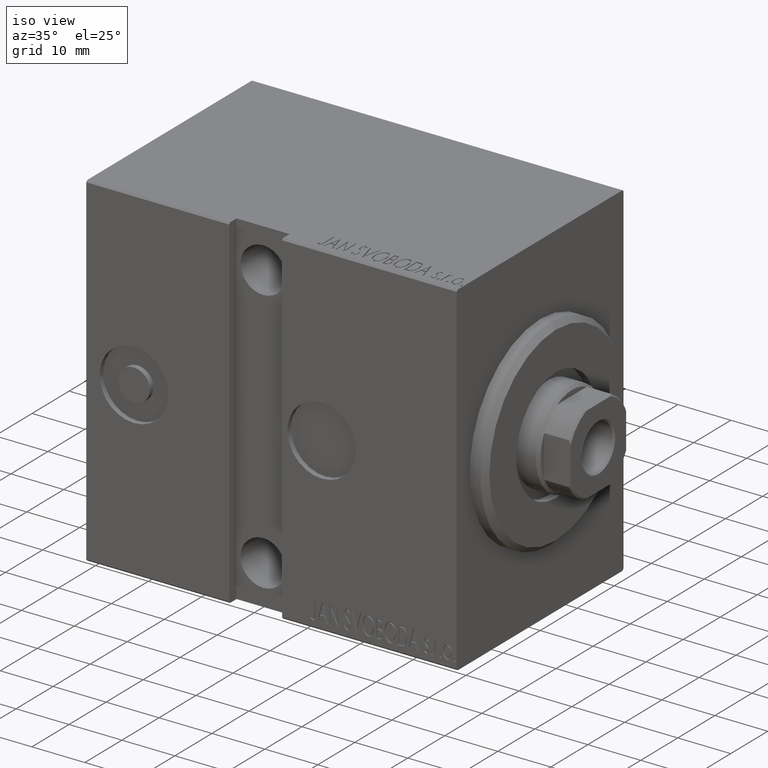
[diagram: clean part render]
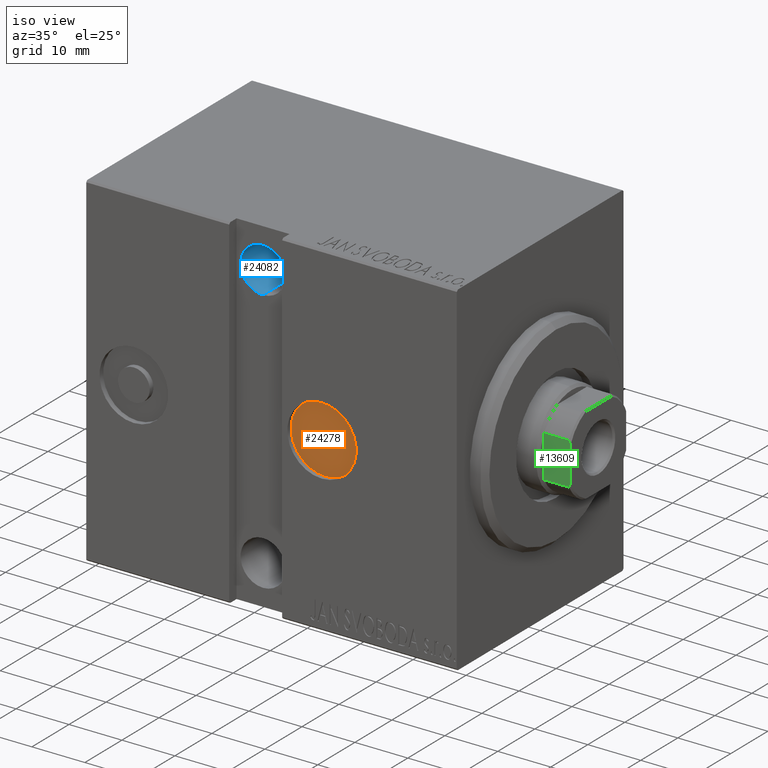
[diagram: same view with three faces highlighted in distinct colors, each labeled with its STEP entity id]
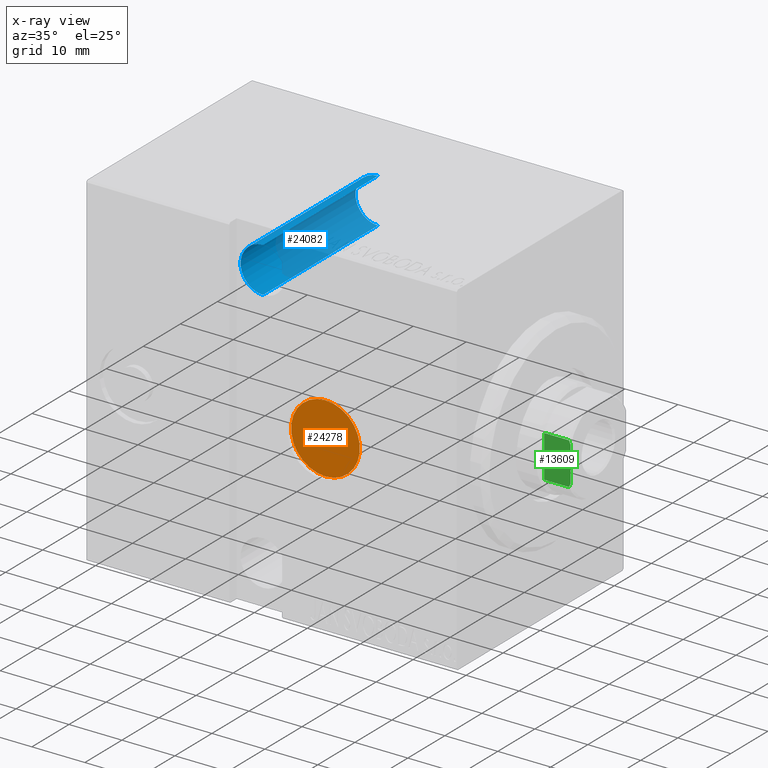
[diagram: x-ray of the same camera — body ghosted, the three highlighted faces saturated]
A machine part, iso view with three faces highlighted in distinct colors.
The next image is the same camera in x-ray (body ghosted, the three faces saturated) — at least one of them is partly hidden behind the body in this view.
Their STEP definitions:

[orange] entity #24278 — the highlighted planar face has unit normal (-0, -1, 0).
#715 = DIRECTION ( 'NONE',  ( 1.848892746611746419E-32, 1.000000000000000000, 8.851255261214056290E-17 ) ) ;
#868 = DIRECTION ( 'NONE',  ( 0.000000000000000000, -8.851255261214056290E-17, 1.000000000000000000 ) ) ;
#1904 = VERTEX_POINT ( 'NONE', #35273 ) ;
#6166 = ORIENTED_EDGE ( 'NONE', *, *, #41128, .T. ) ;
#6314 = CIRCLE ( 'NONE', #10434, 6.499999999999997335 ) ;
#6442 = DIRECTION ( 'NONE',  ( 0.000000000000000000, 0.000000000000000000, 1.000000000000000000 ) ) ;
#7212 = AXIS2_PLACEMENT_3D ( 'NONE', #7587, #715, #20720 ) ;
#7587 = CARTESIAN_POINT ( 'NONE',  ( 25.50000000000000000, 21.50000000000000000, 2.275763105547195299E-15 ) ) ;
#10093 = DIRECTION ( 'NONE',  ( 1.848892746611746419E-32, 1.000000000000000000, 8.851255261214056290E-17 ) ) ;
#10434 = AXIS2_PLACEMENT_3D ( 'NONE', #39616, #10093, #6442 ) ;
#20720 = DIRECTION ( 'NONE',  ( 0.000000000000000000, 0.000000000000000000, 1.000000000000000000 ) ) ;
#22056 = AXIS2_PLACEMENT_3D ( 'NONE', #23463, #33167, #868 ) ;
#23463 = CARTESIAN_POINT ( 'NONE',  ( 4.160008679876429443E-31, 21.50000000000000000, 1.865370726429394705E-15 ) ) ;
#24278 = ADVANCED_FACE ( 'NONE', ( #27352 ), #26710, .T. ) ;
#24501 = VERTEX_POINT ( 'NONE', #39559 ) ;
#26482 = CIRCLE ( 'NONE', #7212, 6.499999999999997335 ) ;
#26710 = PLANE ( 'NONE',  #22056 ) ;
#27352 = FACE_OUTER_BOUND ( 'NONE', #42031, .T. ) ;
#28399 = EDGE_CURVE ( 'NONE', #24501, #1904, #6314, .T. ) ;
#29534 = ORIENTED_EDGE ( 'NONE', *, *, #28399, .T. ) ;
#33167 = DIRECTION ( 'NONE',  ( 1.848892746611746419E-32, 1.000000000000000000, 8.851255261214056290E-17 ) ) ;
#35273 = CARTESIAN_POINT ( 'NONE',  ( 25.50000000000000000, 21.50000000000000000, 6.500000000000000000 ) ) ;
#39559 = CARTESIAN_POINT ( 'NONE',  ( 25.50000000000000000, 21.50000000000000000, -6.499999999999994671 ) ) ;
#39616 = CARTESIAN_POINT ( 'NONE',  ( 25.50000000000000000, 21.50000000000000000, 2.275763105547195299E-15 ) ) ;
#41128 = EDGE_CURVE ( 'NONE', #1904, #24501, #26482, .T. ) ;
#42031 = EDGE_LOOP ( 'NONE', ( #6166, #29534 ) ) ;

[blue] entity #24082 — the highlighted cylindrical surface (edge-blend (fillet) strip) has radius 4.25 mm, axis along (0, -1, 0).
#943 = DIRECTION ( 'NONE',  ( -0.000000000000000000, 1.000000000000000000, -0.000000000000000000 ) ) ;
#1838 = EDGE_CURVE ( 'NONE', #24921, #2679, #27753, .T. ) ;
#2619 = VERTEX_POINT ( 'NONE', #13117 ) ;
#2679 = VERTEX_POINT ( 'NONE', #19391 ) ;
#6581 = LINE ( 'NONE', #12407, #14423 ) ;
#6807 = EDGE_CURVE ( 'NONE', #2679, #17438, #32707, .T. ) ;
#7251 = AXIS2_PLACEMENT_3D ( 'NONE', #28150, #31593, #38074 ) ;
#7268 = CIRCLE ( 'NONE', #31337, 4.249999999999996447 ) ;
#7599 = DIRECTION ( 'NONE',  ( 0.000000000000000000, 0.000000000000000000, 1.000000000000000000 ) ) ;
#8152 = CARTESIAN_POINT ( 'NONE',  ( 38.00000000000001421, -22.50000000000001421, 20.75000000000000355 ) ) ;
#10824 = CARTESIAN_POINT ( 'NONE',  ( 38.00000000000001421, -22.50000000000001421, 25.00000000000000000 ) ) ;
#12407 = CARTESIAN_POINT ( 'NONE',  ( 38.00000000000001421, -22.50000000000001421, 29.25000000000000000 ) ) ;
#13117 = CARTESIAN_POINT ( 'NONE',  ( 38.00000000000001421, -10.49999999999999112, 29.25000000000000000 ) ) ;
#14001 = VECTOR ( 'NONE', #34003, 1000.000000000000000 ) ;
#14324 = ORIENTED_EDGE ( 'NONE', *, *, #1838, .F. ) ;
#14423 = VECTOR ( 'NONE', #35888, 1000.000000000000000 ) ;
#14601 = ORIENTED_EDGE ( 'NONE', *, *, #22844, .T. ) ;
#17438 = VERTEX_POINT ( 'NONE', #35030 ) ;
#19391 = CARTESIAN_POINT ( 'NONE',  ( 38.00000000000001421, 20.49999999999999645, 20.75000000000000355 ) ) ;
#21477 = DIRECTION ( 'NONE',  ( -0.000000000000000000, 1.000000000000000000, -1.963837897332234442E-16 ) ) ;
#22844 = EDGE_CURVE ( 'NONE', #2619, #17438, #6581, .T. ) ;
#23113 = CYLINDRICAL_SURFACE ( 'NONE', #40633, 4.249999999999996447 ) ;
#24082 = ADVANCED_FACE ( 'NONE', ( #39921 ), #23113, .F. ) ;
#24921 = VERTEX_POINT ( 'NONE', #37118 ) ;
#25156 = EDGE_LOOP ( 'NONE', ( #14324, #40369, #14601, #30550 ) ) ;
#25360 = CARTESIAN_POINT ( 'NONE',  ( 38.00000000000001421, -10.49999999999999112, 25.00000000000000000 ) ) ;
#27753 = LINE ( 'NONE', #8152, #14001 ) ;
#28150 = CARTESIAN_POINT ( 'NONE',  ( 38.00000000000001421, 20.49999999999999645, 25.00000000000000000 ) ) ;
#30550 = ORIENTED_EDGE ( 'NONE', *, *, #6807, .F. ) ;
#31337 = AXIS2_PLACEMENT_3D ( 'NONE', #25360, #21477, #34836 ) ;
#31593 = DIRECTION ( 'NONE',  ( 0.000000000000000000, -1.000000000000000000, 0.000000000000000000 ) ) ;
#32707 = CIRCLE ( 'NONE', #7251, 4.249999999999996447 ) ;
#34003 = DIRECTION ( 'NONE',  ( -0.000000000000000000, 1.000000000000000000, -0.000000000000000000 ) ) ;
#34836 = DIRECTION ( 'NONE',  ( 0.000000000000000000, 0.000000000000000000, -1.000000000000000000 ) ) ;
#35030 = CARTESIAN_POINT ( 'NONE',  ( 38.00000000000001421, 20.49999999999999645, 29.25000000000000000 ) ) ;
#35888 = DIRECTION ( 'NONE',  ( -0.000000000000000000, 1.000000000000000000, -0.000000000000000000 ) ) ;
#37118 = CARTESIAN_POINT ( 'NONE',  ( 38.00000000000001421, -10.49999999999999112, 20.75000000000000355 ) ) ;
#38074 = DIRECTION ( 'NONE',  ( 0.000000000000000000, 0.000000000000000000, -1.000000000000000000 ) ) ;
#39921 = FACE_OUTER_BOUND ( 'NONE', #25156, .T. ) ;
#40369 = ORIENTED_EDGE ( 'NONE', *, *, #42561, .F. ) ;
#40633 = AXIS2_PLACEMENT_3D ( 'NONE', #10824, #943, #7599 ) ;
#42561 = EDGE_CURVE ( 'NONE', #2619, #24921, #7268, .T. ) ;

[green] entity #13609 — the highlighted planar face has unit normal (0, 1, 0).
#846 = EDGE_CURVE ( 'NONE', #39730, #38622, #37177, .T. ) ;
#874 = CARTESIAN_POINT ( 'NONE',  ( 3.315116890850187570, -7.499999999999996447, 75.00000000000001421 ) ) ;
#2817 = CARTESIAN_POINT ( 'NONE',  ( -3.546278369582397616, -7.499999999999998224, 74.90654544845624230 ) ) ;
#3238 = CARTESIAN_POINT ( 'NONE',  ( -3.774404943294797921, -7.499999999999998224, 74.80616237962605908 ) ) ;
#4006 = EDGE_CURVE ( 'NONE', #32246, #29357, #31281, .T. ) ;
#4030 = CARTESIAN_POINT ( 'NONE',  ( -7.499999999999999112, -7.499999999999998224, 75.00000000000001421 ) ) ;
#4607 = CARTESIAN_POINT ( 'NONE',  ( -7.499999999999999112, -7.499999999999998224, 75.00000000000001421 ) ) ;
#7077 = LINE ( 'NONE', #17192, #24463 ) ;
#7326 = CARTESIAN_POINT ( 'NONE',  ( 4.000000000000000000, -7.500000000000000888, 74.70000000000001705 ) ) ;
#7935 = EDGE_CURVE ( 'NONE', #29357, #26183, #7077, .T. ) ;
#7937 = CARTESIAN_POINT ( 'NONE',  ( 4.000000000000000000, -7.500000000000000888, 70.00000000000001421 ) ) ;
#8611 = CARTESIAN_POINT ( 'NONE',  ( -4.000000000000000000, -7.500000000000000888, 70.00000000000001421 ) ) ;
#9886 = CARTESIAN_POINT ( 'NONE',  ( 4.000000000000000000, -7.500000000000000888, 74.70000000000001705 ) ) ;
#10729 = LINE ( 'NONE', #23666, #41444 ) ;
#11159 = DIRECTION ( 'NONE',  ( -0.000000000000000000, -0.000000000000000000, 1.000000000000000000 ) ) ;
#11892 = DIRECTION ( 'NONE',  ( 1.000000000000000000, 0.000000000000000000, 0.000000000000000000 ) ) ;
#12601 = EDGE_CURVE ( 'NONE', #39730, #26921, #39584, .T. ) ;
#13171 = EDGE_CURVE ( 'NONE', #26183, #26921, #25136, .T. ) ;
#13412 = CARTESIAN_POINT ( 'NONE',  ( -3.315116890850222653, -7.499999999999998224, 75.00000000000001421 ) ) ;
#13609 = ADVANCED_FACE ( 'NONE', ( #21824 ), #41439, .F. ) ;
#13745 = ORIENTED_EDGE ( 'NONE', *, *, #4006, .T. ) ;
#14716 = DIRECTION ( 'NONE',  ( 0.000000000000000000, -0.000000000000000000, 1.000000000000000000 ) ) ;
#16956 = DIRECTION ( 'NONE',  ( 1.000000000000000000, 0.000000000000000000, 0.000000000000000000 ) ) ;
#17192 = CARTESIAN_POINT ( 'NONE',  ( 4.000000000000000000, -7.500000000000000888, -0.001000000000001000089 ) ) ;
#18628 = ORIENTED_EDGE ( 'NONE', *, *, #846, .T. ) ;
#18705 = ORIENTED_EDGE ( 'NONE', *, *, #7935, .T. ) ;
#20453 = CARTESIAN_POINT ( 'NONE',  ( 3.546278369582418488, -7.499999999999998224, 74.90654544845632756 ) ) ;
#21581 = ORIENTED_EDGE ( 'NONE', *, *, #33813, .F. ) ;
#21824 = FACE_OUTER_BOUND ( 'NONE', #30335, .T. ) ;
#23666 = CARTESIAN_POINT ( 'NONE',  ( -4.000000000000000000, -7.500000000000000888, -0.001000000000001000089 ) ) ;
#24370 = VECTOR ( 'NONE', #11892, 1000.000000000000000 ) ;
#24463 = VECTOR ( 'NONE', #33782, 1000.000000000000000 ) ;
#25063 = DIRECTION ( 'NONE',  ( 0.000000000000000000, 1.000000000000000000, 0.000000000000000000 ) ) ;
#25136 = B_SPLINE_CURVE_WITH_KNOTS ( 'NONE', 3,
 ( #7326, #40489, #20453, #874 ),
 .UNSPECIFIED., .F., .F.,
 ( 4, 4 ),
 ( 0.000000000000000000, 0.0007477064084242632681 ),
 .UNSPECIFIED. ) ;
#25862 = ORIENTED_EDGE ( 'NONE', *, *, #12601, .F. ) ;
#26183 = VERTEX_POINT ( 'NONE', #9886 ) ;
#26921 = VERTEX_POINT ( 'NONE', #32560 ) ;
#29357 = VERTEX_POINT ( 'NONE', #7937 ) ;
#29500 = CARTESIAN_POINT ( 'NONE',  ( -4.000000000000000000, -7.500000000000000888, 74.70000000000004547 ) ) ;
#30335 = EDGE_LOOP ( 'NONE', ( #18705, #35549, #25862, #18628, #21581, #13745 ) ) ;
#30643 = CARTESIAN_POINT ( 'NONE',  ( -7.499999999999999112, -7.499999999999998224, 70.00000000000000000 ) ) ;
#31281 = LINE ( 'NONE', #30643, #24370 ) ;
#31735 = CARTESIAN_POINT ( 'NONE',  ( -4.000000000000000000, -7.500000000000000888, 74.70000000000004547 ) ) ;
#32246 = VERTEX_POINT ( 'NONE', #8611 ) ;
#32325 = CARTESIAN_POINT ( 'NONE',  ( -3.315116890850222653, -7.499999999999998224, 75.00000000000001421 ) ) ;
#32560 = CARTESIAN_POINT ( 'NONE',  ( 3.315116890850187570, -7.499999999999996447, 75.00000000000001421 ) ) ;
#33511 = AXIS2_PLACEMENT_3D ( 'NONE', #4607, #25063, #14716 ) ;
#33782 = DIRECTION ( 'NONE',  ( -0.000000000000000000, -0.000000000000000000, 1.000000000000000000 ) ) ;
#33813 = EDGE_CURVE ( 'NONE', #32246, #38622, #10729, .T. ) ;
#35549 = ORIENTED_EDGE ( 'NONE', *, *, #13171, .T. ) ;
#36648 = VECTOR ( 'NONE', #16956, 1000.000000000000000 ) ;
#37177 = B_SPLINE_CURVE_WITH_KNOTS ( 'NONE', 3,
 ( #32325, #2817, #3238, #29500 ),
 .UNSPECIFIED., .F., .F.,
 ( 4, 4 ),
 ( 1.301042606982605321E-18, 0.0007477064084242215263 ),
 .UNSPECIFIED. ) ;
#38622 = VERTEX_POINT ( 'NONE', #31735 ) ;
#39584 = LINE ( 'NONE', #4030, #36648 ) ;
#39730 = VERTEX_POINT ( 'NONE', #13412 ) ;
#40489 = CARTESIAN_POINT ( 'NONE',  ( 3.774404943294770831, -7.500000000000000888, 74.80616237962600223 ) ) ;
#41439 = PLANE ( 'NONE',  #33511 ) ;
#41444 = VECTOR ( 'NONE', #11159, 1000.000000000000000 ) ;